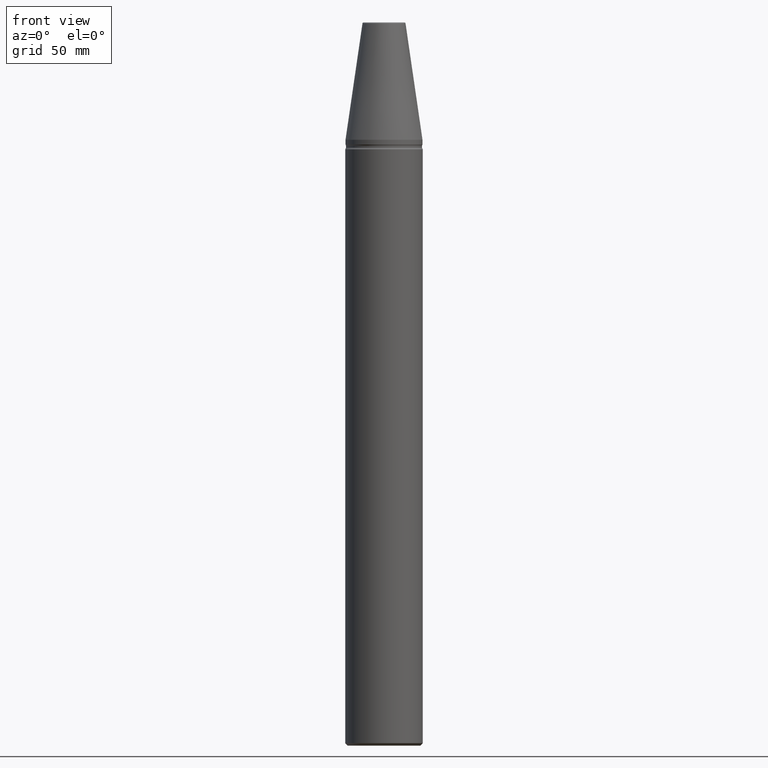
[diagram: clean part render]
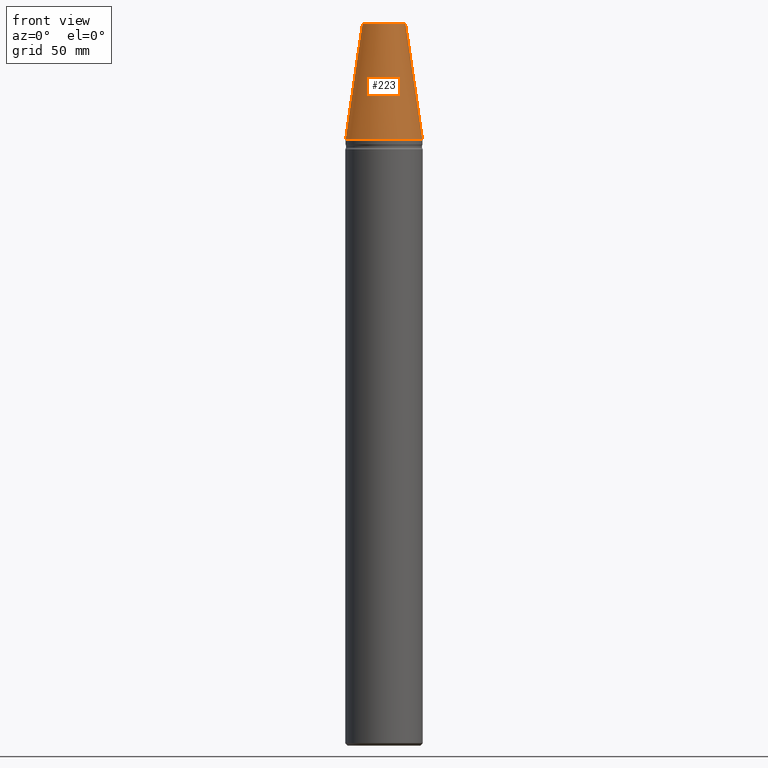
[diagram: same view with one face highlighted and labeled with its STEP entity id]
A machine part, front view. The second image highlights one B-rep face of the part: STEP entity #223.
In plain terms, the highlighted conical surface has half-angle 8.297 deg.
Its self-contained STEP definition (entity closure, byte-faithful):
#1 = AXIS2_PLACEMENT_3D ( 'NONE', #134, #492, #491 ) ;
#16 = AXIS2_PLACEMENT_3D ( 'NONE', #377, #475, #147 ) ;
#59 = AXIS2_PLACEMENT_3D ( 'NONE', #468, #235, #275 ) ;
#63 = EDGE_CURVE ( 'NONE', #451, #476, #430, .T. ) ;
#80 = EDGE_CURVE ( 'NONE', #322, #144, #514, .T. ) ;
#81 = ORIENTED_EDGE ( 'NONE', *, *, #243, .T. ) ;
#103 = CIRCLE ( 'NONE', #1, 15.87499999999986100 ) ;
#110 = CARTESIAN_POINT ( 'NONE',  ( 15.87499999999986100, 1.944126793646406300E-015, 2.220446049250313100E-013 ) ) ;
#134 = CARTESIAN_POINT ( 'NONE',  ( 0.0000000000000000000, 0.0000000000000000000, 2.220446049250313100E-013 ) ) ;
#141 = CARTESIAN_POINT ( 'NONE',  ( 15.87499999999986100, 0.0000000000000000000, 2.220446049250313100E-013 ) ) ;
#144 = VERTEX_POINT ( 'NONE', #193 ) ;
#147 = DIRECTION ( 'NONE',  ( -1.000000000000000000, 0.0000000000000000000, 0.0000000000000000000 ) ) ;
#158 = CIRCLE ( 'NONE', #59, 8.878994820583630000 ) ;
#169 = ORIENTED_EDGE ( 'NONE', *, *, #63, .F. ) ;
#193 = CARTESIAN_POINT ( 'NONE',  ( -15.87499999999986100, 1.944126793646406300E-015, 2.220446049250313100E-013 ) ) ;
#197 = CARTESIAN_POINT ( 'NONE',  ( 8.878994820583630000, 1.515745026156886500E-015, 47.97215411344146900 ) ) ;
#223 = ADVANCED_FACE ( 'NONE', ( #305 ), #290, .T. ) ;
#227 = DIRECTION ( 'NONE',  ( 0.1443082268835062000, 1.767266081435159400E-017, -0.9895327865481458000 ) ) ;
#235 = DIRECTION ( 'NONE',  ( -0.0000000000000000000, -0.0000000000000000000, 1.000000000000000000 ) ) ;
#243 = EDGE_CURVE ( 'NONE', #144, #476, #103, .T. ) ;
#263 = ORIENTED_EDGE ( 'NONE', *, *, #80, .T. ) ;
#275 = DIRECTION ( 'NONE',  ( 1.000000000000000000, 0.0000000000000000000, 0.0000000000000000000 ) ) ;
#290 = CONICAL_SURFACE ( 'NONE', #16, 15.87499999999986100, 0.1448138461595584500 ) ;
#305 = FACE_OUTER_BOUND ( 'NONE', #473, .T. ) ;
#317 = VECTOR ( 'NONE', #227, 1000.000000000000100 ) ;
#322 = VERTEX_POINT ( 'NONE', #353 ) ;
#349 = DIRECTION ( 'NONE',  ( -0.1443082268835062000, 0.0000000000000000000, -0.9895327865481458000 ) ) ;
#353 = CARTESIAN_POINT ( 'NONE',  ( -8.878994820583630000, 0.0000000000000000000, 47.97215411344146900 ) ) ;
#377 = CARTESIAN_POINT ( 'NONE',  ( 0.0000000000000000000, 0.0000000000000000000, 2.220446049250313100E-013 ) ) ;
#406 = CARTESIAN_POINT ( 'NONE',  ( -15.87499999999986100, 0.0000000000000000000, 2.220446049250313100E-013 ) ) ;
#430 = LINE ( 'NONE', #110, #317 ) ;
#434 = ORIENTED_EDGE ( 'NONE', *, *, #500, .F. ) ;
#451 = VERTEX_POINT ( 'NONE', #197 ) ;
#468 = CARTESIAN_POINT ( 'NONE',  ( 0.0000000000000000000, 0.0000000000000000000, 47.97215411344146900 ) ) ;
#473 = EDGE_LOOP ( 'NONE', ( #169, #434, #263, #81 ) ) ;
#475 = DIRECTION ( 'NONE',  ( 0.0000000000000000000, 0.0000000000000000000, -1.000000000000000000 ) ) ;
#476 = VERTEX_POINT ( 'NONE', #141 ) ;
#491 = DIRECTION ( 'NONE',  ( 1.000000000000000000, 0.0000000000000000000, 0.0000000000000000000 ) ) ;
#492 = DIRECTION ( 'NONE',  ( -0.0000000000000000000, -0.0000000000000000000, 1.000000000000000000 ) ) ;
#500 = EDGE_CURVE ( 'NONE', #322, #451, #158, .T. ) ;
#502 = VECTOR ( 'NONE', #349, 1000.000000000000100 ) ;
#514 = LINE ( 'NONE', #406, #502 ) ;